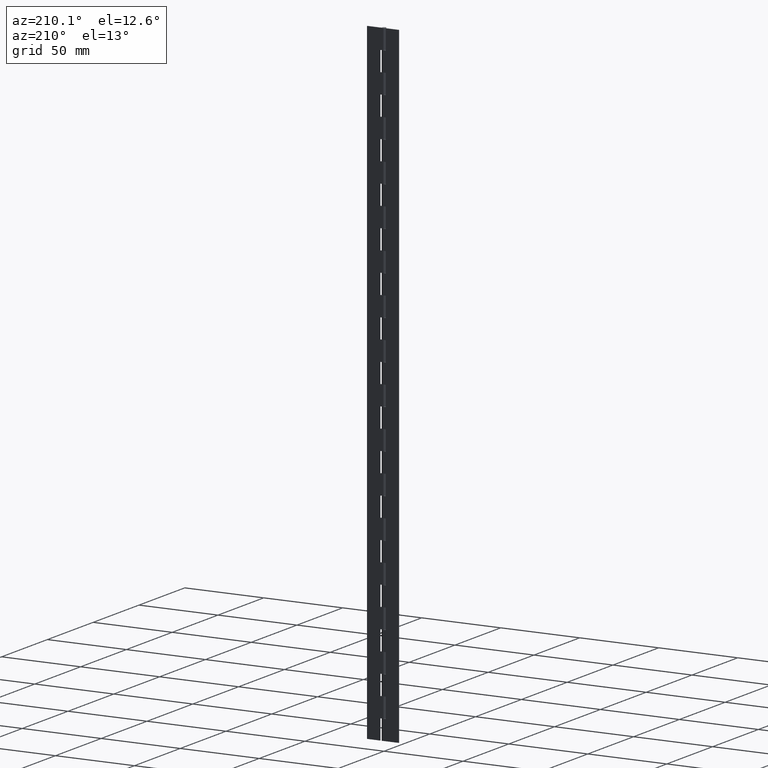
[diagram: clean part render]
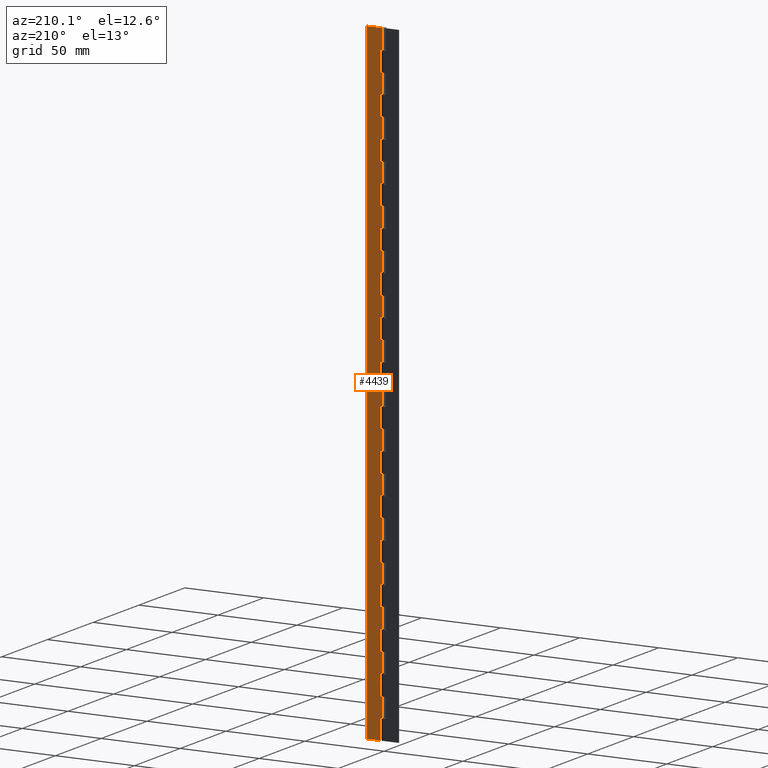
[diagram: same view with one face highlighted and labeled with its STEP entity id]
A machine part, auxiliary view. The second image highlights one B-rep face of the part: STEP entity #4439.
In plain terms, the highlighted face is a freeform B-spline surface patch.
Its self-contained STEP definition (entity closure, byte-faithful):
#51=CARTESIAN_POINT('',(1.800003000000105,1.249999999999972,387.500000000000000));
#52=VERTEX_POINT('',#51);
#58=CARTESIAN_POINT('',(1.800003000000105,1.249999999999972,375.0));
#59=VERTEX_POINT('',#58);
#60=CARTESIAN_POINT('',(1.800003000000105,1.249999999999972,375.0));
#61=CARTESIAN_POINT('',(1.800003000000105,1.249999999999972,387.500000000000000));
#62=QUASI_UNIFORM_CURVE('',1,(#60,#61),.UNSPECIFIED.,.F.,.U.);
#63=EDGE_CURVE('',#59,#52,#62,.T.);
#115=CARTESIAN_POINT('',(0.0,1.249999999999972,387.500000000000000));
#116=VERTEX_POINT('',#115);
#136=CARTESIAN_POINT('',(1.800003000000105,1.249999999999972,387.500000000000000));
#137=CARTESIAN_POINT('',(0.0,1.249999999999972,387.500000000000000));
#138=QUASI_UNIFORM_CURVE('',1,(#136,#137),.UNSPECIFIED.,.F.,.U.);
#139=EDGE_CURVE('',#52,#116,#138,.T.);
#156=CARTESIAN_POINT('',(0.0,1.249999999999972,375.0));
#157=VERTEX_POINT('',#156);
#158=CARTESIAN_POINT('',(0.0,1.249999999999972,375.0));
#159=CARTESIAN_POINT('',(1.800003000000105,1.249999999999972,375.0));
#160=QUASI_UNIFORM_CURVE('',1,(#158,#159),.UNSPECIFIED.,.F.,.U.);
#161=EDGE_CURVE('',#157,#59,#160,.T.);
#227=CARTESIAN_POINT('',(1.800003000000105,1.249999999999972,362.500000000000000));
#228=VERTEX_POINT('',#227);
#234=CARTESIAN_POINT('',(1.800003000000105,1.249999999999972,350.0));
#235=VERTEX_POINT('',#234);
#236=CARTESIAN_POINT('',(1.800003000000105,1.249999999999972,350.0));
#237=CARTESIAN_POINT('',(1.800003000000105,1.249999999999972,362.500000000000000));
#238=QUASI_UNIFORM_CURVE('',1,(#236,#237),.UNSPECIFIED.,.F.,.U.);
#239=EDGE_CURVE('',#235,#228,#238,.T.);
#291=CARTESIAN_POINT('',(0.0,1.249999999999972,362.500000000000000));
#292=VERTEX_POINT('',#291);
#312=CARTESIAN_POINT('',(1.800003000000105,1.249999999999972,362.500000000000000));
#313=CARTESIAN_POINT('',(0.0,1.249999999999972,362.500000000000000));
#314=QUASI_UNIFORM_CURVE('',1,(#312,#313),.UNSPECIFIED.,.F.,.U.);
#315=EDGE_CURVE('',#228,#292,#314,.T.);
#332=CARTESIAN_POINT('',(0.0,1.249999999999972,350.0));
#333=VERTEX_POINT('',#332);
#334=CARTESIAN_POINT('',(0.0,1.249999999999972,350.0));
#335=CARTESIAN_POINT('',(1.800003000000105,1.249999999999972,350.0));
#336=QUASI_UNIFORM_CURVE('',1,(#334,#335),.UNSPECIFIED.,.F.,.U.);
#337=EDGE_CURVE('',#333,#235,#336,.T.);
#403=CARTESIAN_POINT('',(1.800003000000105,1.249999999999972,337.500000000000000));
#404=VERTEX_POINT('',#403);
#410=CARTESIAN_POINT('',(1.800003000000105,1.249999999999972,325.0));
#411=VERTEX_POINT('',#410);
#412=CARTESIAN_POINT('',(1.800003000000105,1.249999999999972,325.0));
#413=CARTESIAN_POINT('',(1.800003000000105,1.249999999999972,337.500000000000000));
#414=QUASI_UNIFORM_CURVE('',1,(#412,#413),.UNSPECIFIED.,.F.,.U.);
#415=EDGE_CURVE('',#411,#404,#414,.T.);
#467=CARTESIAN_POINT('',(0.0,1.249999999999972,337.500000000000000));
#468=VERTEX_POINT('',#467);
#488=CARTESIAN_POINT('',(1.800003000000105,1.249999999999972,337.500000000000000));
#489=CARTESIAN_POINT('',(0.0,1.249999999999972,337.500000000000000));
#490=QUASI_UNIFORM_CURVE('',1,(#488,#489),.UNSPECIFIED.,.F.,.U.);
#491=EDGE_CURVE('',#404,#468,#490,.T.);
#508=CARTESIAN_POINT('',(0.0,1.249999999999972,325.0));
#509=VERTEX_POINT('',#508);
#510=CARTESIAN_POINT('',(0.0,1.249999999999972,325.0));
#511=CARTESIAN_POINT('',(1.800003000000105,1.249999999999972,325.0));
#512=QUASI_UNIFORM_CURVE('',1,(#510,#511),.UNSPECIFIED.,.F.,.U.);
#513=EDGE_CURVE('',#509,#411,#512,.T.);
#579=CARTESIAN_POINT('',(1.800003000000105,1.249999999999972,312.500000000000000));
#580=VERTEX_POINT('',#579);
#586=CARTESIAN_POINT('',(1.800003000000105,1.249999999999972,300.0));
#587=VERTEX_POINT('',#586);
#588=CARTESIAN_POINT('',(1.800003000000105,1.249999999999972,300.0));
#589=CARTESIAN_POINT('',(1.800003000000105,1.249999999999972,312.500000000000000));
#590=QUASI_UNIFORM_CURVE('',1,(#588,#589),.UNSPECIFIED.,.F.,.U.);
#591=EDGE_CURVE('',#587,#580,#590,.T.);
#643=CARTESIAN_POINT('',(0.0,1.249999999999972,312.500000000000000));
#644=VERTEX_POINT('',#643);
#664=CARTESIAN_POINT('',(1.800003000000105,1.249999999999972,312.500000000000000));
#665=CARTESIAN_POINT('',(0.0,1.249999999999972,312.500000000000000));
#666=QUASI_UNIFORM_CURVE('',1,(#664,#665),.UNSPECIFIED.,.F.,.U.);
#667=EDGE_CURVE('',#580,#644,#666,.T.);
#684=CARTESIAN_POINT('',(0.0,1.249999999999972,300.0));
#685=VERTEX_POINT('',#684);
#686=CARTESIAN_POINT('',(0.0,1.249999999999972,300.0));
#687=CARTESIAN_POINT('',(1.800003000000105,1.249999999999972,300.0));
#688=QUASI_UNIFORM_CURVE('',1,(#686,#687),.UNSPECIFIED.,.F.,.U.);
#689=EDGE_CURVE('',#685,#587,#688,.T.);
#755=CARTESIAN_POINT('',(1.800003000000105,1.249999999999972,287.500000000000000));
#756=VERTEX_POINT('',#755);
#762=CARTESIAN_POINT('',(1.800003000000105,1.249999999999972,275.0));
#763=VERTEX_POINT('',#762);
#764=CARTESIAN_POINT('',(1.800003000000105,1.249999999999972,275.0));
#765=CARTESIAN_POINT('',(1.800003000000105,1.249999999999972,287.500000000000000));
#766=QUASI_UNIFORM_CURVE('',1,(#764,#765),.UNSPECIFIED.,.F.,.U.);
#767=EDGE_CURVE('',#763,#756,#766,.T.);
#819=CARTESIAN_POINT('',(0.0,1.249999999999972,287.500000000000000));
#820=VERTEX_POINT('',#819);
#840=CARTESIAN_POINT('',(1.800003000000105,1.249999999999972,287.500000000000000));
#841=CARTESIAN_POINT('',(0.0,1.249999999999972,287.500000000000000));
#842=QUASI_UNIFORM_CURVE('',1,(#840,#841),.UNSPECIFIED.,.F.,.U.);
#843=EDGE_CURVE('',#756,#820,#842,.T.);
#860=CARTESIAN_POINT('',(0.0,1.249999999999972,275.0));
#861=VERTEX_POINT('',#860);
#862=CARTESIAN_POINT('',(0.0,1.249999999999972,275.0));
#863=CARTESIAN_POINT('',(1.800003000000105,1.249999999999972,275.0));
#864=QUASI_UNIFORM_CURVE('',1,(#862,#863),.UNSPECIFIED.,.F.,.U.);
#865=EDGE_CURVE('',#861,#763,#864,.T.);
#931=CARTESIAN_POINT('',(1.800003000000105,1.249999999999972,262.500000000000000));
#932=VERTEX_POINT('',#931);
#938=CARTESIAN_POINT('',(1.800003000000105,1.249999999999972,250.0));
#939=VERTEX_POINT('',#938);
#940=CARTESIAN_POINT('',(1.800003000000105,1.249999999999972,250.0));
#941=CARTESIAN_POINT('',(1.800003000000105,1.249999999999972,262.500000000000000));
#942=QUASI_UNIFORM_CURVE('',1,(#940,#941),.UNSPECIFIED.,.F.,.U.);
#943=EDGE_CURVE('',#939,#932,#942,.T.);
#995=CARTESIAN_POINT('',(0.0,1.249999999999972,262.500000000000000));
#996=VERTEX_POINT('',#995);
#1016=CARTESIAN_POINT('',(1.800003000000105,1.249999999999972,262.500000000000000));
#1017=CARTESIAN_POINT('',(0.0,1.249999999999972,262.500000000000000));
#1018=QUASI_UNIFORM_CURVE('',1,(#1016,#1017),.UNSPECIFIED.,.F.,.U.);
#1019=EDGE_CURVE('',#932,#996,#1018,.T.);
#1036=CARTESIAN_POINT('',(0.0,1.249999999999972,250.0));
#1037=VERTEX_POINT('',#1036);
#1038=CARTESIAN_POINT('',(0.0,1.249999999999972,250.0));
#1039=CARTESIAN_POINT('',(1.800003000000105,1.249999999999972,250.0));
#1040=QUASI_UNIFORM_CURVE('',1,(#1038,#1039),.UNSPECIFIED.,.F.,.U.);
#1041=EDGE_CURVE('',#1037,#939,#1040,.T.);
#1107=CARTESIAN_POINT('',(1.800003000000105,1.249999999999972,237.500000000000000));
#1108=VERTEX_POINT('',#1107);
#1114=CARTESIAN_POINT('',(1.800003000000105,1.249999999999972,225.0));
#1115=VERTEX_POINT('',#1114);
#1116=CARTESIAN_POINT('',(1.800003000000105,1.249999999999972,225.0));
#1117=CARTESIAN_POINT('',(1.800003000000105,1.249999999999972,237.500000000000000));
#1118=QUASI_UNIFORM_CURVE('',1,(#1116,#1117),.UNSPECIFIED.,.F.,.U.);
#1119=EDGE_CURVE('',#1115,#1108,#1118,.T.);
#1171=CARTESIAN_POINT('',(0.0,1.249999999999972,237.500000000000000));
#1172=VERTEX_POINT('',#1171);
#1192=CARTESIAN_POINT('',(1.800003000000105,1.249999999999972,237.500000000000000));
#1193=CARTESIAN_POINT('',(0.0,1.249999999999972,237.500000000000000));
#1194=QUASI_UNIFORM_CURVE('',1,(#1192,#1193),.UNSPECIFIED.,.F.,.U.);
#1195=EDGE_CURVE('',#1108,#1172,#1194,.T.);
#1212=CARTESIAN_POINT('',(0.0,1.249999999999972,225.0));
#1213=VERTEX_POINT('',#1212);
#1214=CARTESIAN_POINT('',(0.0,1.249999999999972,225.0));
#1215=CARTESIAN_POINT('',(1.800003000000105,1.249999999999972,225.0));
#1216=QUASI_UNIFORM_CURVE('',1,(#1214,#1215),.UNSPECIFIED.,.F.,.U.);
#1217=EDGE_CURVE('',#1213,#1115,#1216,.T.);
#1283=CARTESIAN_POINT('',(1.800003000000105,1.249999999999972,212.500000000000000));
#1284=VERTEX_POINT('',#1283);
#1290=CARTESIAN_POINT('',(1.800003000000105,1.249999999999972,200.0));
#1291=VERTEX_POINT('',#1290);
#1292=CARTESIAN_POINT('',(1.800003000000105,1.249999999999972,200.0));
#1293=CARTESIAN_POINT('',(1.800003000000105,1.249999999999972,212.500000000000000));
#1294=QUASI_UNIFORM_CURVE('',1,(#1292,#1293),.UNSPECIFIED.,.F.,.U.);
#1295=EDGE_CURVE('',#1291,#1284,#1294,.T.);
#1347=CARTESIAN_POINT('',(0.0,1.249999999999972,212.500000000000000));
#1348=VERTEX_POINT('',#1347);
#1368=CARTESIAN_POINT('',(1.800003000000105,1.249999999999972,212.500000000000000));
#1369=CARTESIAN_POINT('',(0.0,1.249999999999972,212.500000000000000));
#1370=QUASI_UNIFORM_CURVE('',1,(#1368,#1369),.UNSPECIFIED.,.F.,.U.);
#1371=EDGE_CURVE('',#1284,#1348,#1370,.T.);
#1388=CARTESIAN_POINT('',(0.0,1.249999999999972,200.0));
#1389=VERTEX_POINT('',#1388);
#1390=CARTESIAN_POINT('',(0.0,1.249999999999972,200.0));
#1391=CARTESIAN_POINT('',(1.800003000000105,1.249999999999972,200.0));
#1392=QUASI_UNIFORM_CURVE('',1,(#1390,#1391),.UNSPECIFIED.,.F.,.U.);
#1393=EDGE_CURVE('',#1389,#1291,#1392,.T.);
#1459=CARTESIAN_POINT('',(1.800003000000105,1.249999999999972,187.500000000000000));
#1460=VERTEX_POINT('',#1459);
#1466=CARTESIAN_POINT('',(1.800003000000105,1.249999999999972,175.0));
#1467=VERTEX_POINT('',#1466);
#1468=CARTESIAN_POINT('',(1.800003000000105,1.249999999999972,175.0));
#1469=CARTESIAN_POINT('',(1.800003000000105,1.249999999999972,187.500000000000000));
#1470=QUASI_UNIFORM_CURVE('',1,(#1468,#1469),.UNSPECIFIED.,.F.,.U.);
#1471=EDGE_CURVE('',#1467,#1460,#1470,.T.);
#1523=CARTESIAN_POINT('',(0.0,1.249999999999972,187.500000000000000));
#1524=VERTEX_POINT('',#1523);
#1544=CARTESIAN_POINT('',(1.800003000000105,1.249999999999972,187.500000000000000));
#1545=CARTESIAN_POINT('',(0.0,1.249999999999972,187.500000000000000));
#1546=QUASI_UNIFORM_CURVE('',1,(#1544,#1545),.UNSPECIFIED.,.F.,.U.);
#1547=EDGE_CURVE('',#1460,#1524,#1546,.T.);
#1564=CARTESIAN_POINT('',(0.0,1.249999999999972,175.0));
#1565=VERTEX_POINT('',#1564);
#1566=CARTESIAN_POINT('',(0.0,1.249999999999972,175.0));
#1567=CARTESIAN_POINT('',(1.800003000000105,1.249999999999972,175.0));
#1568=QUASI_UNIFORM_CURVE('',1,(#1566,#1567),.UNSPECIFIED.,.F.,.U.);
#1569=EDGE_CURVE('',#1565,#1467,#1568,.T.);
#1635=CARTESIAN_POINT('',(1.800003000000105,1.249999999999972,162.500000000000000));
#1636=VERTEX_POINT('',#1635);
#1642=CARTESIAN_POINT('',(1.800003000000105,1.249999999999972,150.0));
#1643=VERTEX_POINT('',#1642);
#1644=CARTESIAN_POINT('',(1.800003000000105,1.249999999999972,150.0));
#1645=CARTESIAN_POINT('',(1.800003000000105,1.249999999999972,162.500000000000000));
#1646=QUASI_UNIFORM_CURVE('',1,(#1644,#1645),.UNSPECIFIED.,.F.,.U.);
#1647=EDGE_CURVE('',#1643,#1636,#1646,.T.);
#1699=CARTESIAN_POINT('',(0.0,1.249999999999972,162.500000000000000));
#1700=VERTEX_POINT('',#1699);
#1720=CARTESIAN_POINT('',(1.800003000000105,1.249999999999972,162.500000000000000));
#1721=CARTESIAN_POINT('',(0.0,1.249999999999972,162.500000000000000));
#1722=QUASI_UNIFORM_CURVE('',1,(#1720,#1721),.UNSPECIFIED.,.F.,.U.);
#1723=EDGE_CURVE('',#1636,#1700,#1722,.T.);
#1740=CARTESIAN_POINT('',(0.0,1.249999999999972,150.0));
#1741=VERTEX_POINT('',#1740);
#1742=CARTESIAN_POINT('',(0.0,1.249999999999972,150.0));
#1743=CARTESIAN_POINT('',(1.800003000000105,1.249999999999972,150.0));
#1744=QUASI_UNIFORM_CURVE('',1,(#1742,#1743),.UNSPECIFIED.,.F.,.U.);
#1745=EDGE_CURVE('',#1741,#1643,#1744,.T.);
#1811=CARTESIAN_POINT('',(1.800003000000105,1.249999999999972,137.500000000000000));
#1812=VERTEX_POINT('',#1811);
#1818=CARTESIAN_POINT('',(1.800003000000105,1.249999999999972,125.0));
#1819=VERTEX_POINT('',#1818);
#1820=CARTESIAN_POINT('',(1.800003000000105,1.249999999999972,125.0));
#1821=CARTESIAN_POINT('',(1.800003000000105,1.249999999999972,137.500000000000000));
#1822=QUASI_UNIFORM_CURVE('',1,(#1820,#1821),.UNSPECIFIED.,.F.,.U.);
#1823=EDGE_CURVE('',#1819,#1812,#1822,.T.);
#1875=CARTESIAN_POINT('',(0.0,1.249999999999972,137.500000000000000));
#1876=VERTEX_POINT('',#1875);
#1896=CARTESIAN_POINT('',(1.800003000000105,1.249999999999972,137.500000000000000));
#1897=CARTESIAN_POINT('',(0.0,1.249999999999972,137.500000000000000));
#1898=QUASI_UNIFORM_CURVE('',1,(#1896,#1897),.UNSPECIFIED.,.F.,.U.);
#1899=EDGE_CURVE('',#1812,#1876,#1898,.T.);
#1916=CARTESIAN_POINT('',(0.0,1.249999999999972,125.0));
#1917=VERTEX_POINT('',#1916);
#1918=CARTESIAN_POINT('',(0.0,1.249999999999972,125.0));
#1919=CARTESIAN_POINT('',(1.800003000000105,1.249999999999972,125.0));
#1920=QUASI_UNIFORM_CURVE('',1,(#1918,#1919),.UNSPECIFIED.,.F.,.U.);
#1921=EDGE_CURVE('',#1917,#1819,#1920,.T.);
#1987=CARTESIAN_POINT('',(1.800003000000105,1.249999999999972,112.500000000000000));
#1988=VERTEX_POINT('',#1987);
#1994=CARTESIAN_POINT('',(1.800003000000105,1.249999999999972,100.0));
#1995=VERTEX_POINT('',#1994);
#1996=CARTESIAN_POINT('',(1.800003000000105,1.249999999999972,100.0));
#1997=CARTESIAN_POINT('',(1.800003000000105,1.249999999999972,112.500000000000000));
#1998=QUASI_UNIFORM_CURVE('',1,(#1996,#1997),.UNSPECIFIED.,.F.,.U.);
#1999=EDGE_CURVE('',#1995,#1988,#1998,.T.);
#2051=CARTESIAN_POINT('',(0.0,1.249999999999972,112.500000000000000));
#2052=VERTEX_POINT('',#2051);
#2072=CARTESIAN_POINT('',(1.800003000000105,1.249999999999972,112.500000000000000));
#2073=CARTESIAN_POINT('',(0.0,1.249999999999972,112.500000000000000));
#2074=QUASI_UNIFORM_CURVE('',1,(#2072,#2073),.UNSPECIFIED.,.F.,.U.);
#2075=EDGE_CURVE('',#1988,#2052,#2074,.T.);
#2092=CARTESIAN_POINT('',(0.0,1.249999999999972,100.0));
#2093=VERTEX_POINT('',#2092);
#2094=CARTESIAN_POINT('',(0.0,1.249999999999972,100.0));
#2095=CARTESIAN_POINT('',(1.800003000000105,1.249999999999972,100.0));
#2096=QUASI_UNIFORM_CURVE('',1,(#2094,#2095),.UNSPECIFIED.,.F.,.U.);
#2097=EDGE_CURVE('',#2093,#1995,#2096,.T.);
#2163=CARTESIAN_POINT('',(1.800003000000105,1.249999999999972,87.500000000000000));
#2164=VERTEX_POINT('',#2163);
#2170=CARTESIAN_POINT('',(1.800003000000105,1.249999999999972,75.0));
#2171=VERTEX_POINT('',#2170);
#2172=CARTESIAN_POINT('',(1.800003000000105,1.249999999999972,75.0));
#2173=CARTESIAN_POINT('',(1.800003000000105,1.249999999999972,87.500000000000000));
#2174=QUASI_UNIFORM_CURVE('',1,(#2172,#2173),.UNSPECIFIED.,.F.,.U.);
#2175=EDGE_CURVE('',#2171,#2164,#2174,.T.);
#2227=CARTESIAN_POINT('',(0.0,1.249999999999972,87.500000000000000));
#2228=VERTEX_POINT('',#2227);
#2248=CARTESIAN_POINT('',(1.800003000000105,1.249999999999972,87.500000000000000));
#2249=CARTESIAN_POINT('',(0.0,1.249999999999972,87.500000000000000));
#2250=QUASI_UNIFORM_CURVE('',1,(#2248,#2249),.UNSPECIFIED.,.F.,.U.);
#2251=EDGE_CURVE('',#2164,#2228,#2250,.T.);
#2268=CARTESIAN_POINT('',(0.0,1.249999999999972,75.0));
#2269=VERTEX_POINT('',#2268);
#2270=CARTESIAN_POINT('',(0.0,1.249999999999972,75.0));
#2271=CARTESIAN_POINT('',(1.800003000000105,1.249999999999972,75.0));
#2272=QUASI_UNIFORM_CURVE('',1,(#2270,#2271),.UNSPECIFIED.,.F.,.U.);
#2273=EDGE_CURVE('',#2269,#2171,#2272,.T.);
#2339=CARTESIAN_POINT('',(1.800003000000105,1.249999999999972,62.500000000000000));
#2340=VERTEX_POINT('',#2339);
#2346=CARTESIAN_POINT('',(1.800003000000105,1.249999999999972,50.0));
#2347=VERTEX_POINT('',#2346);
#2348=CARTESIAN_POINT('',(1.800003000000105,1.249999999999972,50.0));
#2349=CARTESIAN_POINT('',(1.800003000000105,1.249999999999972,62.500000000000000));
#2350=QUASI_UNIFORM_CURVE('',1,(#2348,#2349),.UNSPECIFIED.,.F.,.U.);
#2351=EDGE_CURVE('',#2347,#2340,#2350,.T.);
#2403=CARTESIAN_POINT('',(0.0,1.249999999999972,62.500000000000000));
#2404=VERTEX_POINT('',#2403);
#2424=CARTESIAN_POINT('',(1.800003000000105,1.249999999999972,62.500000000000000));
#2425=CARTESIAN_POINT('',(0.0,1.249999999999972,62.500000000000000));
#2426=QUASI_UNIFORM_CURVE('',1,(#2424,#2425),.UNSPECIFIED.,.F.,.U.);
#2427=EDGE_CURVE('',#2340,#2404,#2426,.T.);
#2444=CARTESIAN_POINT('',(0.0,1.249999999999972,50.0));
#2445=VERTEX_POINT('',#2444);
#2446=CARTESIAN_POINT('',(0.0,1.249999999999972,50.0));
#2447=CARTESIAN_POINT('',(1.800003000000105,1.249999999999972,50.0));
#2448=QUASI_UNIFORM_CURVE('',1,(#2446,#2447),.UNSPECIFIED.,.F.,.U.);
#2449=EDGE_CURVE('',#2445,#2347,#2448,.T.);
#2515=CARTESIAN_POINT('',(1.800003000000105,1.249999999999972,37.500000000000000));
#2516=VERTEX_POINT('',#2515);
#2522=CARTESIAN_POINT('',(1.800003000000105,1.249999999999972,25.0));
#2523=VERTEX_POINT('',#2522);
#2524=CARTESIAN_POINT('',(1.800003000000105,1.249999999999972,25.0));
#2525=CARTESIAN_POINT('',(1.800003000000105,1.249999999999972,37.500000000000000));
#2526=QUASI_UNIFORM_CURVE('',1,(#2524,#2525),.UNSPECIFIED.,.F.,.U.);
#2527=EDGE_CURVE('',#2523,#2516,#2526,.T.);
#2579=CARTESIAN_POINT('',(0.0,1.249999999999972,37.500000000000000));
#2580=VERTEX_POINT('',#2579);
#2600=CARTESIAN_POINT('',(1.800003000000105,1.249999999999972,37.500000000000000));
#2601=CARTESIAN_POINT('',(0.0,1.249999999999972,37.500000000000000));
#2602=QUASI_UNIFORM_CURVE('',1,(#2600,#2601),.UNSPECIFIED.,.F.,.U.);
#2603=EDGE_CURVE('',#2516,#2580,#2602,.T.);
#2620=CARTESIAN_POINT('',(0.0,1.249999999999972,25.0));
#2621=VERTEX_POINT('',#2620);
#2622=CARTESIAN_POINT('',(0.0,1.249999999999972,25.0));
#2623=CARTESIAN_POINT('',(1.800003000000105,1.249999999999972,25.0));
#2624=QUASI_UNIFORM_CURVE('',1,(#2622,#2623),.UNSPECIFIED.,.F.,.U.);
#2625=EDGE_CURVE('',#2621,#2523,#2624,.T.);
#2691=CARTESIAN_POINT('',(1.800003000000105,1.249999999999972,12.500000000000000));
#2692=VERTEX_POINT('',#2691);
#2698=CARTESIAN_POINT('',(1.800003000000105,1.250000000000000,0.0));
#2699=VERTEX_POINT('',#2698);
#2700=CARTESIAN_POINT('',(1.800003000000105,1.250000000000000,0.0));
#2701=CARTESIAN_POINT('',(1.800003000000105,1.249999999999972,12.500000000000000));
#2702=QUASI_UNIFORM_CURVE('',1,(#2700,#2701),.UNSPECIFIED.,.F.,.U.);
#2703=EDGE_CURVE('',#2699,#2692,#2702,.T.);
#2755=CARTESIAN_POINT('',(0.0,1.249999999999972,12.500000000000000));
#2756=VERTEX_POINT('',#2755);
#2776=CARTESIAN_POINT('',(1.800003000000105,1.249999999999972,12.500000000000000));
#2777=CARTESIAN_POINT('',(0.0,1.249999999999972,12.500000000000000));
#2778=QUASI_UNIFORM_CURVE('',1,(#2776,#2777),.UNSPECIFIED.,.F.,.U.);
#2779=EDGE_CURVE('',#2692,#2756,#2778,.T.);
#2795=CARTESIAN_POINT('',(-2.296137E-016,1.250000000000000,400.0));
#2796=VERTEX_POINT('',#2795);
#2797=CARTESIAN_POINT('',(10.0,1.250000000000000,400.0));
#2798=VERTEX_POINT('',#2797);
#2799=CARTESIAN_POINT('',(-2.296137E-016,1.250000000000000,400.0));
#2800=CARTESIAN_POINT('',(10.0,1.250000000000000,400.0));
#2801=QUASI_UNIFORM_CURVE('',1,(#2799,#2800),.UNSPECIFIED.,.F.,.U.);
#2802=EDGE_CURVE('',#2796,#2798,#2801,.T.);
#2873=CARTESIAN_POINT('',(10.0,1.250000000000000,0.0));
#2874=VERTEX_POINT('',#2873);
#2882=CARTESIAN_POINT('',(10.0,1.250000000000000,400.0));
#2883=CARTESIAN_POINT('',(10.0,1.250000000000000,0.0));
#2884=QUASI_UNIFORM_CURVE('',1,(#2882,#2883),.UNSPECIFIED.,.F.,.U.);
#2885=EDGE_CURVE('',#2798,#2874,#2884,.T.);
#2902=CARTESIAN_POINT('',(1.800003000000105,1.250000000000000,0.0));
#2903=CARTESIAN_POINT('',(10.0,1.250000000000000,0.0));
#2904=QUASI_UNIFORM_CURVE('',1,(#2902,#2903),.UNSPECIFIED.,.F.,.U.);
#2905=EDGE_CURVE('',#2699,#2874,#2904,.T.);
#2939=CARTESIAN_POINT('',(0.0,1.249999999999972,25.0));
#2940=CARTESIAN_POINT('',(0.0,1.249999999999972,12.500000000000000));
#2941=QUASI_UNIFORM_CURVE('',1,(#2939,#2940),.UNSPECIFIED.,.F.,.U.);
#2942=EDGE_CURVE('',#2621,#2756,#2941,.T.);
#3025=CARTESIAN_POINT('',(0.0,1.249999999999972,50.0));
#3026=CARTESIAN_POINT('',(0.0,1.249999999999972,37.500000000000000));
#3027=QUASI_UNIFORM_CURVE('',1,(#3025,#3026),.UNSPECIFIED.,.F.,.U.);
#3028=EDGE_CURVE('',#2445,#2580,#3027,.T.);
#3111=CARTESIAN_POINT('',(0.0,1.249999999999972,75.0));
#3112=CARTESIAN_POINT('',(0.0,1.249999999999972,62.500000000000000));
#3113=QUASI_UNIFORM_CURVE('',1,(#3111,#3112),.UNSPECIFIED.,.F.,.U.);
#3114=EDGE_CURVE('',#2269,#2404,#3113,.T.);
#3197=CARTESIAN_POINT('',(0.0,1.249999999999972,100.0));
#3198=CARTESIAN_POINT('',(0.0,1.249999999999972,87.500000000000000));
#3199=QUASI_UNIFORM_CURVE('',1,(#3197,#3198),.UNSPECIFIED.,.F.,.U.);
#3200=EDGE_CURVE('',#2093,#2228,#3199,.T.);
#3283=CARTESIAN_POINT('',(0.0,1.249999999999972,125.0));
#3284=CARTESIAN_POINT('',(0.0,1.249999999999972,112.500000000000000));
#3285=QUASI_UNIFORM_CURVE('',1,(#3283,#3284),.UNSPECIFIED.,.F.,.U.);
#3286=EDGE_CURVE('',#1917,#2052,#3285,.T.);
#3369=CARTESIAN_POINT('',(0.0,1.249999999999972,150.0));
#3370=CARTESIAN_POINT('',(0.0,1.249999999999972,137.500000000000000));
#3371=QUASI_UNIFORM_CURVE('',1,(#3369,#3370),.UNSPECIFIED.,.F.,.U.);
#3372=EDGE_CURVE('',#1741,#1876,#3371,.T.);
#3455=CARTESIAN_POINT('',(0.0,1.249999999999972,175.0));
#3456=CARTESIAN_POINT('',(0.0,1.249999999999972,162.500000000000000));
#3457=QUASI_UNIFORM_CURVE('',1,(#3455,#3456),.UNSPECIFIED.,.F.,.U.);
#3458=EDGE_CURVE('',#1565,#1700,#3457,.T.);
#3541=CARTESIAN_POINT('',(0.0,1.249999999999972,200.0));
#3542=CARTESIAN_POINT('',(0.0,1.249999999999972,187.500000000000000));
#3543=QUASI_UNIFORM_CURVE('',1,(#3541,#3542),.UNSPECIFIED.,.F.,.U.);
#3544=EDGE_CURVE('',#1389,#1524,#3543,.T.);
#3627=CARTESIAN_POINT('',(0.0,1.249999999999972,225.0));
#3628=CARTESIAN_POINT('',(0.0,1.249999999999972,212.500000000000000));
#3629=QUASI_UNIFORM_CURVE('',1,(#3627,#3628),.UNSPECIFIED.,.F.,.U.);
#3630=EDGE_CURVE('',#1213,#1348,#3629,.T.);
#3713=CARTESIAN_POINT('',(0.0,1.249999999999972,250.0));
#3714=CARTESIAN_POINT('',(0.0,1.249999999999972,237.500000000000000));
#3715=QUASI_UNIFORM_CURVE('',1,(#3713,#3714),.UNSPECIFIED.,.F.,.U.);
#3716=EDGE_CURVE('',#1037,#1172,#3715,.T.);
#3799=CARTESIAN_POINT('',(0.0,1.249999999999972,275.0));
#3800=CARTESIAN_POINT('',(0.0,1.249999999999972,262.500000000000000));
#3801=QUASI_UNIFORM_CURVE('',1,(#3799,#3800),.UNSPECIFIED.,.F.,.U.);
#3802=EDGE_CURVE('',#861,#996,#3801,.T.);
#3885=CARTESIAN_POINT('',(0.0,1.249999999999972,300.0));
#3886=CARTESIAN_POINT('',(0.0,1.249999999999972,287.500000000000000));
#3887=QUASI_UNIFORM_CURVE('',1,(#3885,#3886),.UNSPECIFIED.,.F.,.U.);
#3888=EDGE_CURVE('',#685,#820,#3887,.T.);
#3971=CARTESIAN_POINT('',(0.0,1.249999999999972,325.0));
#3972=CARTESIAN_POINT('',(0.0,1.249999999999972,312.500000000000000));
#3973=QUASI_UNIFORM_CURVE('',1,(#3971,#3972),.UNSPECIFIED.,.F.,.U.);
#3974=EDGE_CURVE('',#509,#644,#3973,.T.);
#4057=CARTESIAN_POINT('',(0.0,1.249999999999972,350.0));
#4058=CARTESIAN_POINT('',(0.0,1.249999999999972,337.500000000000000));
#4059=QUASI_UNIFORM_CURVE('',1,(#4057,#4058),.UNSPECIFIED.,.F.,.U.);
#4060=EDGE_CURVE('',#333,#468,#4059,.T.);
#4149=CARTESIAN_POINT('',(-2.296137E-016,1.250000000000000,400.0));
#4150=CARTESIAN_POINT('',(0.0,1.249999999999972,387.500000000000000));
#4151=QUASI_UNIFORM_CURVE('',1,(#4149,#4150),.UNSPECIFIED.,.F.,.U.);
#4152=EDGE_CURVE('',#2796,#116,#4151,.T.);
#4180=CARTESIAN_POINT('',(0.0,1.249999999999972,375.0));
#4181=CARTESIAN_POINT('',(0.0,1.249999999999972,362.500000000000000));
#4182=QUASI_UNIFORM_CURVE('',1,(#4180,#4181),.UNSPECIFIED.,.F.,.U.);
#4183=EDGE_CURVE('',#157,#292,#4182,.T.);
#4366=CARTESIAN_POINT('',(-0.499499980618060,1.250000000000000,-19.979999224722391));
#4367=CARTESIAN_POINT('',(-0.499499980618060,1.250000000000000,419.980009953558520));
#4368=CARTESIAN_POINT('',(10.499500248838959,1.250000000000000,-19.979999224722391));
#4369=CARTESIAN_POINT('',(10.499500248838959,1.250000000000000,419.980009953558520));
#4370=B_SPLINE_SURFACE_WITH_KNOTS('',1,1,((#4366,#4368),(#4367,#4369)),.UNSPECIFIED.,.F.,.F.,.U.,(2,2),(2,2),(0.0,439.960009178280930),(0.0,10.999000229457019),.UNSPECIFIED.);
#4371=ORIENTED_EDGE('',*,*,#4183,.F.);
#4372=ORIENTED_EDGE('',*,*,#161,.T.);
#4373=ORIENTED_EDGE('',*,*,#63,.T.);
#4374=ORIENTED_EDGE('',*,*,#139,.T.);
#4375=ORIENTED_EDGE('',*,*,#4152,.F.);
#4376=ORIENTED_EDGE('',*,*,#2802,.T.);
#4377=ORIENTED_EDGE('',*,*,#2885,.T.);
#4378=ORIENTED_EDGE('',*,*,#2905,.F.);
#4379=ORIENTED_EDGE('',*,*,#2703,.T.);
#4380=ORIENTED_EDGE('',*,*,#2779,.T.);
#4381=ORIENTED_EDGE('',*,*,#2942,.F.);
#4382=ORIENTED_EDGE('',*,*,#2625,.T.);
#4383=ORIENTED_EDGE('',*,*,#2527,.T.);
#4384=ORIENTED_EDGE('',*,*,#2603,.T.);
#4385=ORIENTED_EDGE('',*,*,#3028,.F.);
#4386=ORIENTED_EDGE('',*,*,#2449,.T.);
#4387=ORIENTED_EDGE('',*,*,#2351,.T.);
#4388=ORIENTED_EDGE('',*,*,#2427,.T.);
#4389=ORIENTED_EDGE('',*,*,#3114,.F.);
#4390=ORIENTED_EDGE('',*,*,#2273,.T.);
#4391=ORIENTED_EDGE('',*,*,#2175,.T.);
#4392=ORIENTED_EDGE('',*,*,#2251,.T.);
#4393=ORIENTED_EDGE('',*,*,#3200,.F.);
#4394=ORIENTED_EDGE('',*,*,#2097,.T.);
#4395=ORIENTED_EDGE('',*,*,#1999,.T.);
#4396=ORIENTED_EDGE('',*,*,#2075,.T.);
#4397=ORIENTED_EDGE('',*,*,#3286,.F.);
#4398=ORIENTED_EDGE('',*,*,#1921,.T.);
#4399=ORIENTED_EDGE('',*,*,#1823,.T.);
#4400=ORIENTED_EDGE('',*,*,#1899,.T.);
#4401=ORIENTED_EDGE('',*,*,#3372,.F.);
#4402=ORIENTED_EDGE('',*,*,#1745,.T.);
#4403=ORIENTED_EDGE('',*,*,#1647,.T.);
#4404=ORIENTED_EDGE('',*,*,#1723,.T.);
#4405=ORIENTED_EDGE('',*,*,#3458,.F.);
#4406=ORIENTED_EDGE('',*,*,#1569,.T.);
#4407=ORIENTED_EDGE('',*,*,#1471,.T.);
#4408=ORIENTED_EDGE('',*,*,#1547,.T.);
#4409=ORIENTED_EDGE('',*,*,#3544,.F.);
#4410=ORIENTED_EDGE('',*,*,#1393,.T.);
#4411=ORIENTED_EDGE('',*,*,#1295,.T.);
#4412=ORIENTED_EDGE('',*,*,#1371,.T.);
#4413=ORIENTED_EDGE('',*,*,#3630,.F.);
#4414=ORIENTED_EDGE('',*,*,#1217,.T.);
#4415=ORIENTED_EDGE('',*,*,#1119,.T.);
#4416=ORIENTED_EDGE('',*,*,#1195,.T.);
#4417=ORIENTED_EDGE('',*,*,#3716,.F.);
#4418=ORIENTED_EDGE('',*,*,#1041,.T.);
#4419=ORIENTED_EDGE('',*,*,#943,.T.);
#4420=ORIENTED_EDGE('',*,*,#1019,.T.);
#4421=ORIENTED_EDGE('',*,*,#3802,.F.);
#4422=ORIENTED_EDGE('',*,*,#865,.T.);
#4423=ORIENTED_EDGE('',*,*,#767,.T.);
#4424=ORIENTED_EDGE('',*,*,#843,.T.);
#4425=ORIENTED_EDGE('',*,*,#3888,.F.);
#4426=ORIENTED_EDGE('',*,*,#689,.T.);
#4427=ORIENTED_EDGE('',*,*,#591,.T.);
#4428=ORIENTED_EDGE('',*,*,#667,.T.);
#4429=ORIENTED_EDGE('',*,*,#3974,.F.);
#4430=ORIENTED_EDGE('',*,*,#513,.T.);
#4431=ORIENTED_EDGE('',*,*,#415,.T.);
#4432=ORIENTED_EDGE('',*,*,#491,.T.);
#4433=ORIENTED_EDGE('',*,*,#4060,.F.);
#4434=ORIENTED_EDGE('',*,*,#337,.T.);
#4435=ORIENTED_EDGE('',*,*,#239,.T.);
#4436=ORIENTED_EDGE('',*,*,#315,.T.);
#4437=EDGE_LOOP('',(#4371,#4372,#4373,#4374,#4375,#4376,#4377,#4378,#4379,#4380,#4381,#4382,#4383,#4384,#4385,#4386,#4387,#4388,#4389,#4390,#4391,#4392,#4393,#4394,#4395,#4396,#4397,#4398,#4399,#4400,#4401,#4402,#4403,#4404,#4405,#4406,#4407,#4408,#4409,#4410,#4411,#4412,#4413,#4414,#4415,#4416,#4417,#4418,#4419,#4420,#4421,#4422,#4423,#4424,#4425,#4426,#4427,#4428,#4429,#4430,#4431,#4432,#4433,#4434,#4435,#4436));
#4438=FACE_OUTER_BOUND('',#4437,.T.);
#4439=ADVANCED_FACE('',(#4438),#4370,.T.);